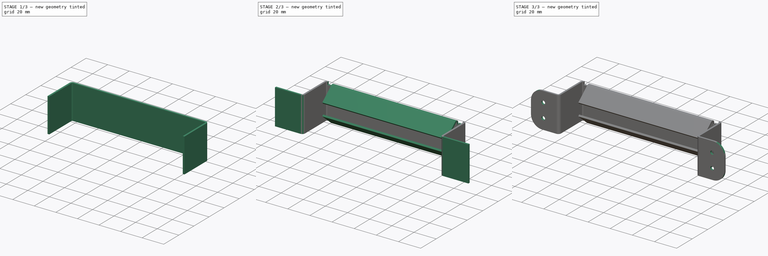
[diagram: build sequence overview — one tinted view per stage of 3, left to right]
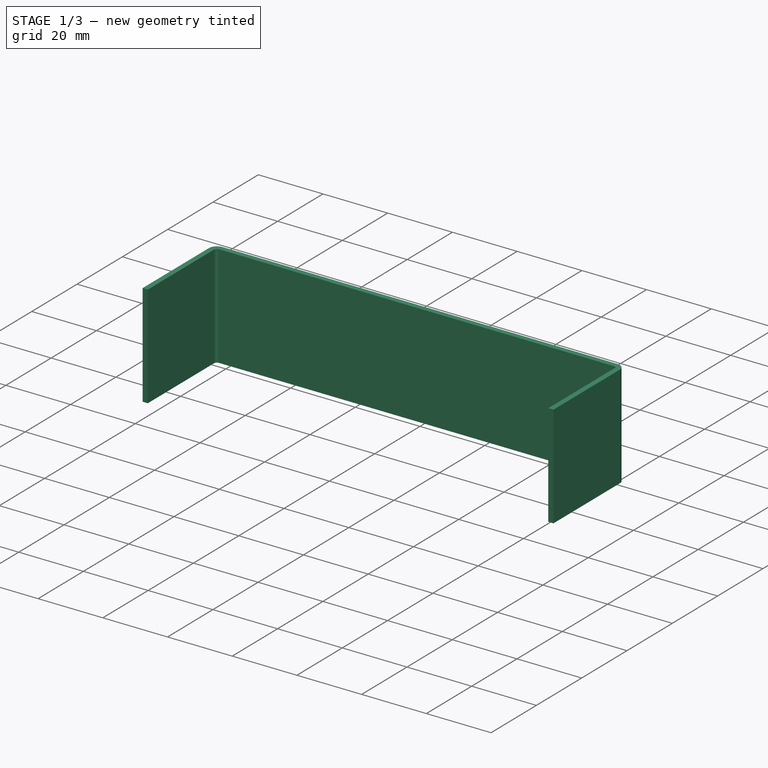
[diagram: stage 1 of 3 — iso view after this stage's code; geometry added in this stage tinted green]
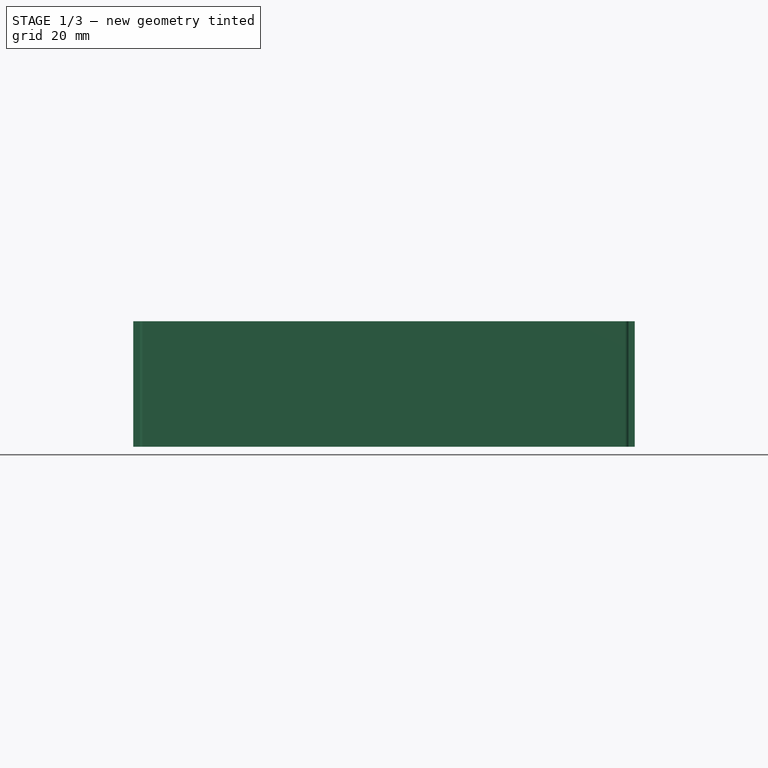
[diagram: stage 1 of 3 — front view after this stage's code; geometry added in this stage tinted green]
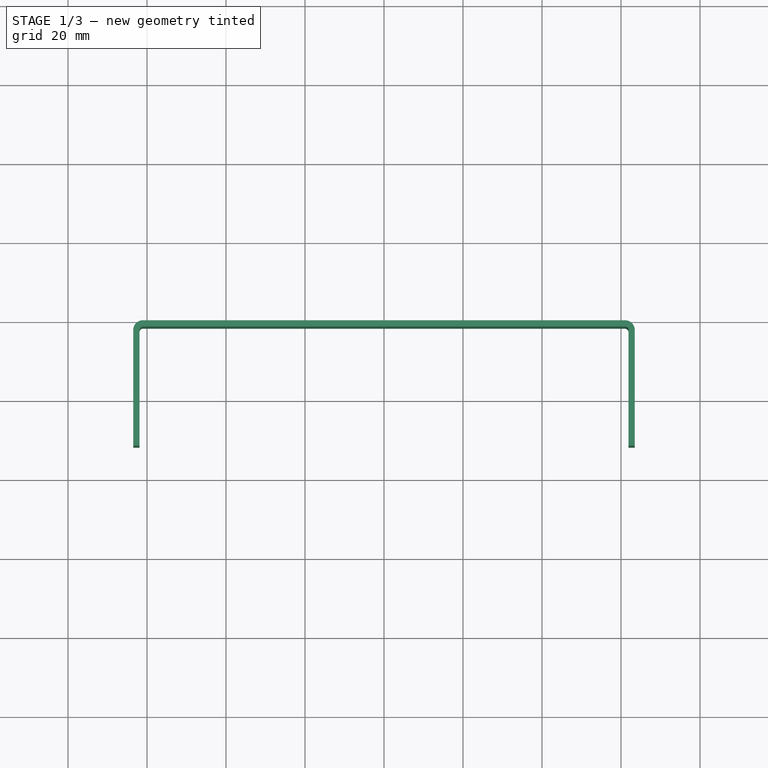
[diagram: stage 1 of 3 — top view after this stage's code; geometry added in this stage tinted green]
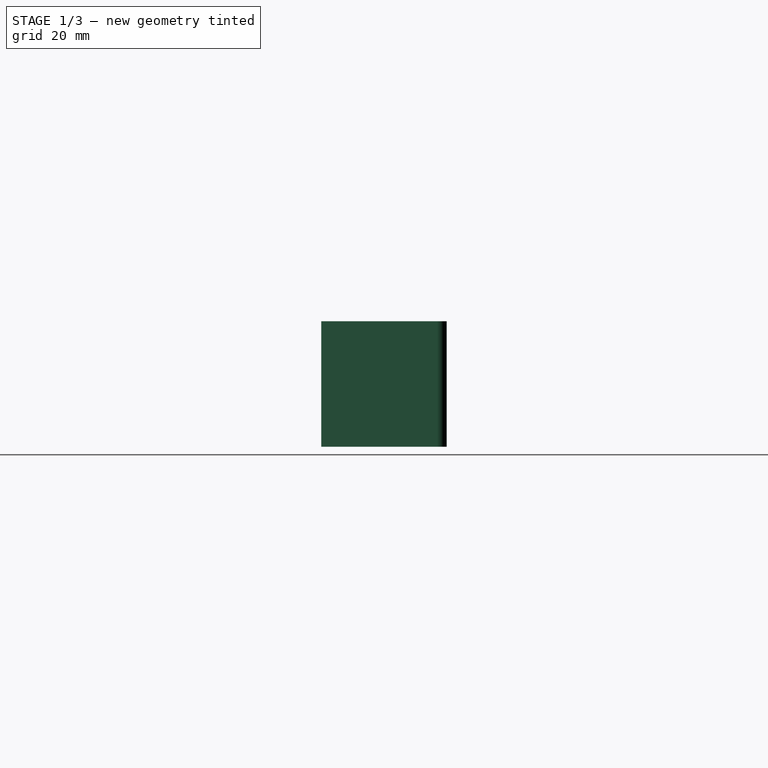
[diagram: stage 1 of 3 — right view after this stage's code; geometry added in this stage tinted green]
FCSTD DOCUMENT  (FreeCAD 1.0R39319 (Git))
Label: Tweaks
License: All rights reserved
LicenseURL: http://en.wikipedia.org/wiki/All_rights_reserved
objects: PartDesign::FeaturePython×3, Sketcher::SketchObject×2, Part::Feature×1, PartDesign::Pad×1, PartDesign::Pocket×1, PartDesign::Mirrored×1, PartDesign::Body×1
note: 20 computed .brp shape members not serialized (recipe doc carries the construction recipe); baked Part::Feature solids carry a one-line shape summary decoded from their .brp

FEATURE [Part::Feature] Part__Feature  label="Chamber; External Door Handle; 10-22-25"
  Placement = pos=(0,0,-44.45) rot=(0,0,1;0rad)
  shape: bbox 175.7 x 36.58 x 34.93 mm, 122 faces (baked)
FEATURE [Sketcher::SketchObject] Sketch
  ArcFitTolerance = 1e-06
  AttachmentSupport = -> [XZ_Plane]
  FullyConstrained = true
  MakeInternals = false
  MapMode = 5
  Placement = pos=(0,0,0) rot=(1,0,0;1.5708rad)
  sketch-geometry (5):
    g0: LineSegment StartX=-63.5 StartY=-15.875 StartZ=0 EndX=63.5 EndY=-15.875 EndZ=0
    g1: LineSegment StartX=63.5 StartY=-15.875 StartZ=0 EndX=63.5 EndY=15.875 EndZ=0
    g2: LineSegment StartX=63.5 StartY=15.875 StartZ=0 EndX=-63.5 EndY=15.875 EndZ=0
    g3: LineSegment StartX=-63.5 StartY=15.875 StartZ=0 EndX=-63.5 EndY=-15.875 EndZ=0
    g4: GeomPoint [constr] X=0 Y=0 Z=0
  constraints (12):
    c: Coincident(g0,g1)
    c: Coincident(g1,g2)
    c: Coincident(g2,g3)
    c: Coincident(g3,g0)
    c: Horizontal(g0)
    c: Horizontal(g2)
    c: Vertical(g1)
    c: Vertical(g3)
    c: Symmetric(g2,g0,g4)
    c: Coincident(g4,g-1)
    c: DistanceX(g2,g2) = 127
    c: DistanceY(g1,g1) = 31.75
FEATURE [PartDesign::Pad] Pad
  Direction = (0,-1,2e-16)
  Length = 1.6002
  Length2 = 10
  Placement = pos=(0,0,0) rot=(1,0,0;1.5708rad)
  Profile = -> Sketch
  ReferenceAxis = -> Sketch [N_Axis]
  Suppressed = false
  Type = 0
FEATURE [PartDesign::FeaturePython] Bend  # WARN: FeaturePython — macro-defined, semantics opaque (R4)
  AutoMiter = false
  BaseFeature = -> Pad
  BendType = 1
  LengthList = [31.75]
  LengthSpec = 1
  NonperforationMaxLength = 5
  OffsetType = 1
  OffsetTypeOffset = 0
  Perforate = false
  PerforationAngle = 0
  PerforationInitialLength = 5
  PerforationMaxLength = 5
  RelativeAngleToRef = 0
  ReliefFactor = 0.7
  SupplAngleRef = false
  Suppressed = false
  UseReliefFactor = false
  angle = 90
  baseObject = -> Pad [Edge7,Edge12]
  bendAList = [90]
  extend1 = 0
  extend2 = 0
  gap1 = 0
  gap2 = 0
  invert = false
  kfactor = 0.5
  length = 31.75
  maxExtendDist = 5
  minGap = 0.2
  minReliefGap = 1
  miterangle1 = 0
  miterangle2 = 0
  offset = 0
  radius = 0.889
  reliefType = 0
  reliefd = 1
  reliefw = 0.8
  sketchflip = false
  sketchinvert = false
  unfold = false
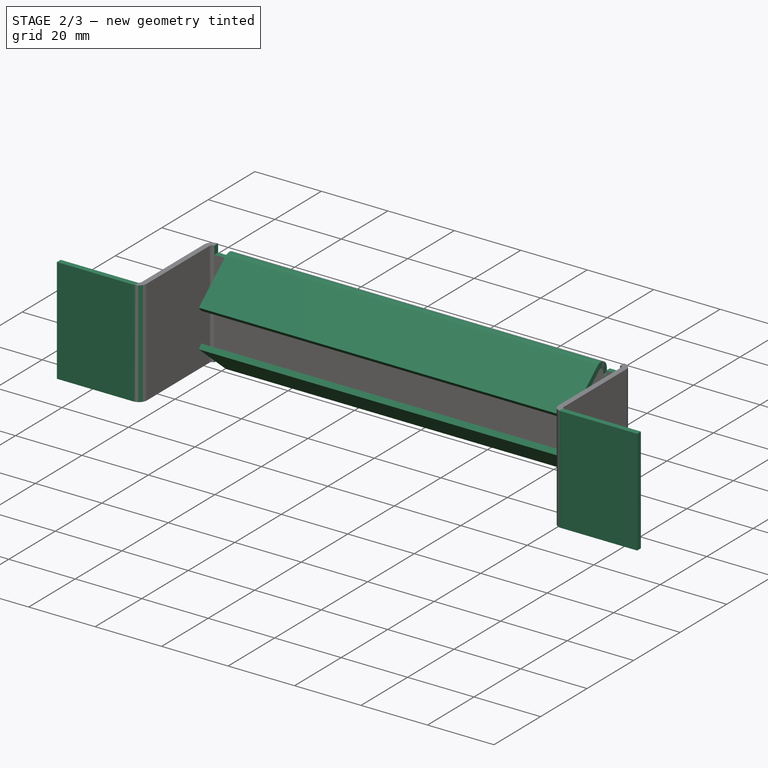
[diagram: stage 2 of 3 — iso view after this stage's code; geometry added in this stage tinted green]
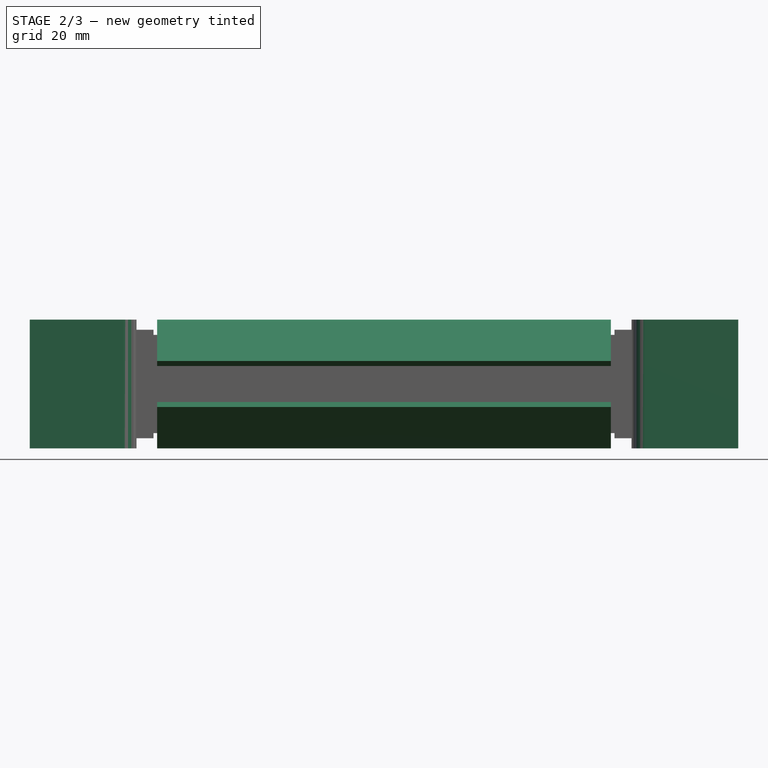
[diagram: stage 2 of 3 — front view after this stage's code; geometry added in this stage tinted green]
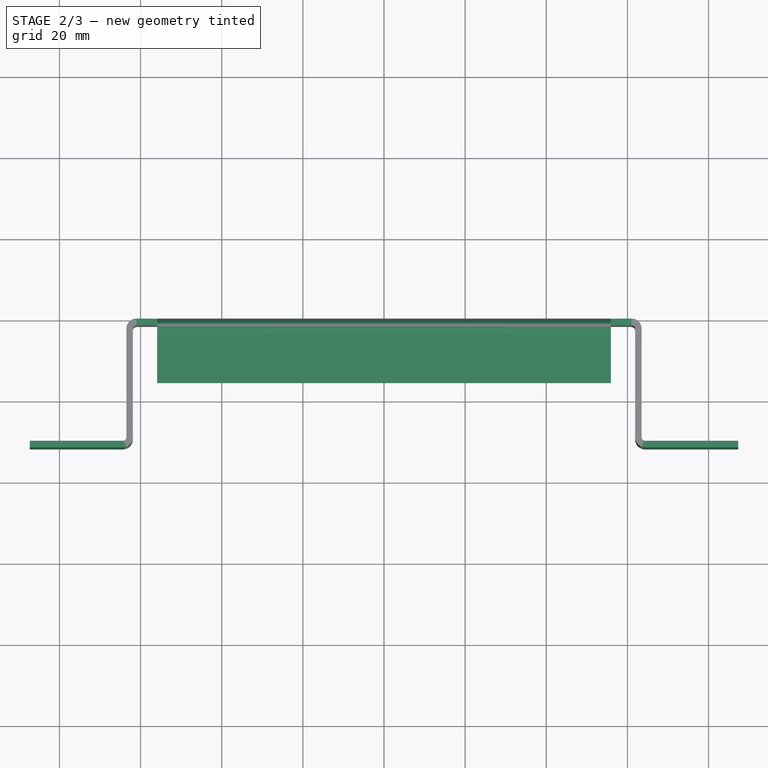
[diagram: stage 2 of 3 — top view after this stage's code; geometry added in this stage tinted green]
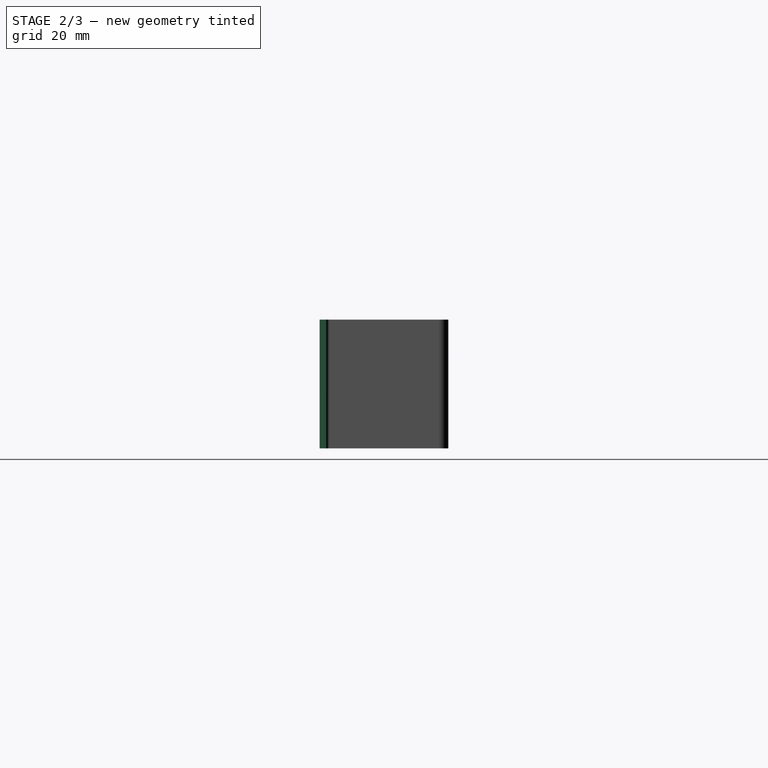
[diagram: stage 2 of 3 — right view after this stage's code; geometry added in this stage tinted green]
FEATURE [PartDesign::FeaturePython] Bend001  # WARN: FeaturePython — macro-defined, semantics opaque (R4)
  AutoMiter = false
  BaseFeature = -> Bend
  BendType = 1
  LengthList = [25.4]
  LengthSpec = 1
  NonperforationMaxLength = 5
  OffsetType = 1
  OffsetTypeOffset = 0
  Perforate = false
  PerforationAngle = 0
  PerforationInitialLength = 5
  PerforationMaxLength = 5
  RelativeAngleToRef = 0
  ReliefFactor = 0.7
  SupplAngleRef = false
  Suppressed = false
  UseReliefFactor = false
  angle = 90
  baseObject = -> Bend [Edge35,Edge37]
  bendAList = [90]
  extend1 = 0
  extend2 = 0
  gap1 = 0
  gap2 = 0
  invert = false
  kfactor = 0.5
  length = 25.4
  maxExtendDist = 5
  minGap = 0.2
  minReliefGap = 1
  miterangle1 = 0
  miterangle2 = 0
  offset = 0
  radius = 0.889
  reliefType = 0
  reliefd = 1
  reliefw = 0.8
  sketchflip = false
  sketchinvert = false
  unfold = false
FEATURE [PartDesign::FeaturePython] Bend002  # WARN: FeaturePython — macro-defined, semantics opaque (R4)
  AutoMiter = false
  BaseFeature = -> Bend001
  BendType = 1
  LengthList = [20.32]
  LengthSpec = 1
  NonperforationMaxLength = 5
  OffsetType = 1
  OffsetTypeOffset = 0
  Perforate = false
  PerforationAngle = 0
  PerforationInitialLength = 5
  PerforationMaxLength = 5
  RelativeAngleToRef = 0
  ReliefFactor = 0.7
  SupplAngleRef = false
  Suppressed = false
  UseReliefFactor = false
  angle = 130
  baseObject = -> Bend001 [Edge12,Edge3]
  bendAList = [130]
  extend1 = 0
  extend2 = 0
  gap1 = 5.08
  gap2 = 5.08
  invert = false
  kfactor = 0.5
  length = 20.32
  maxExtendDist = 5
  minGap = 0.2
  minReliefGap = 1
  miterangle1 = 0
  miterangle2 = 0
  offset = 0
  radius = 0.889
  reliefType = 0
  reliefd = 1.27
  reliefw = 0.889
  sketchflip = false
  sketchinvert = false
  unfold = false
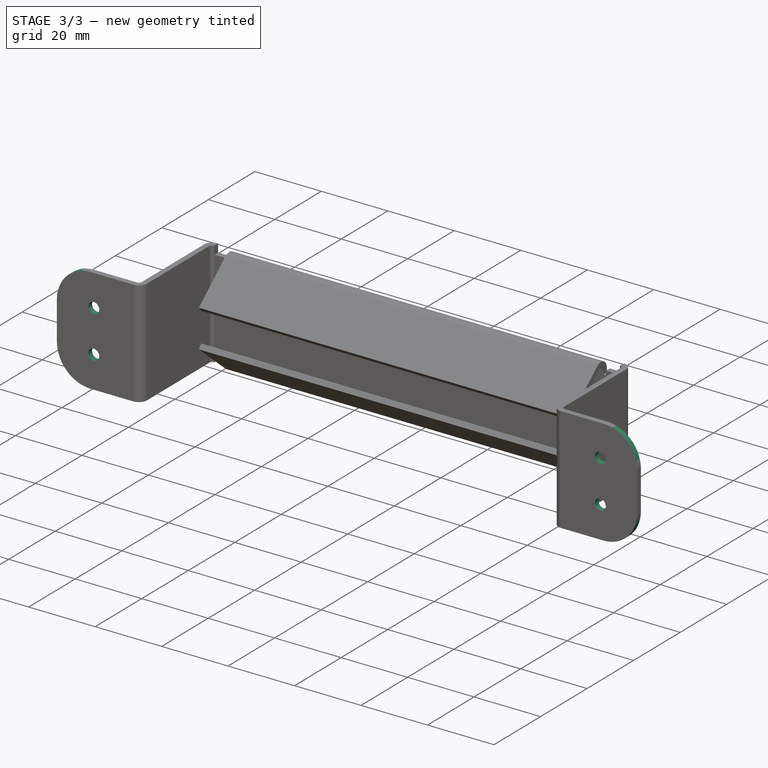
[diagram: stage 3 of 3 — iso view after this stage's code; geometry added in this stage tinted green]
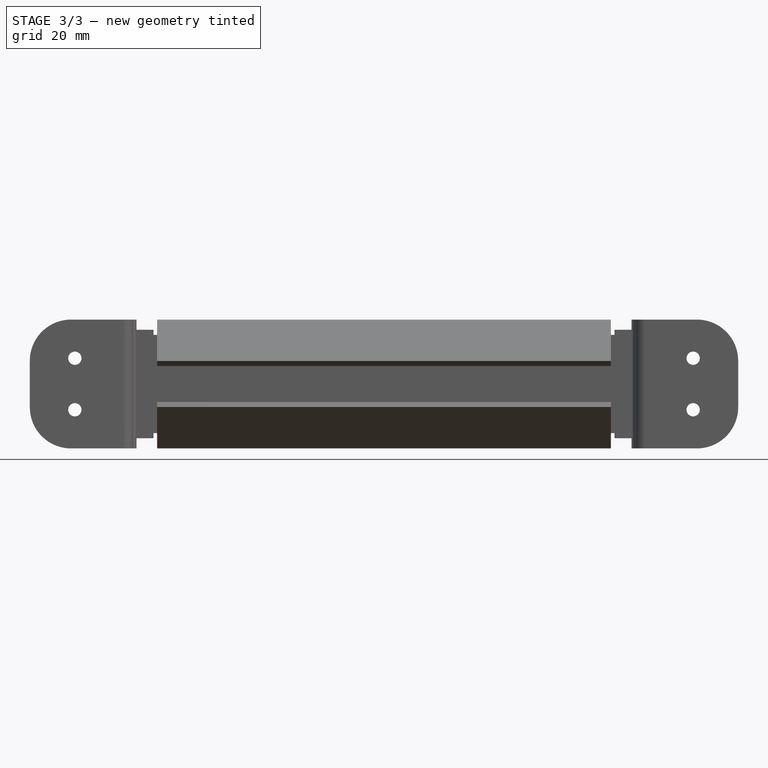
[diagram: stage 3 of 3 — front view after this stage's code; geometry added in this stage tinted green]
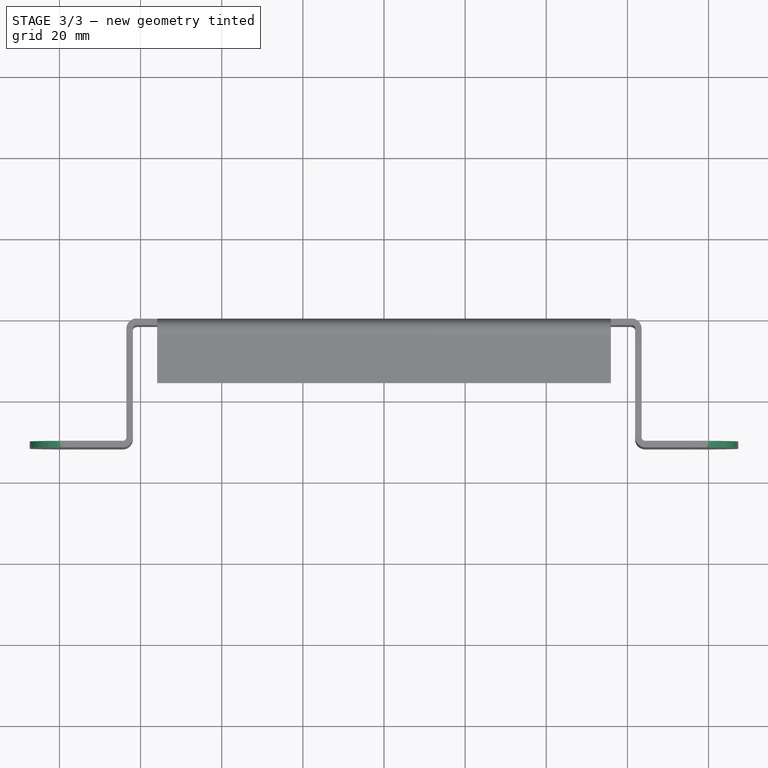
[diagram: stage 3 of 3 — top view after this stage's code; geometry added in this stage tinted green]
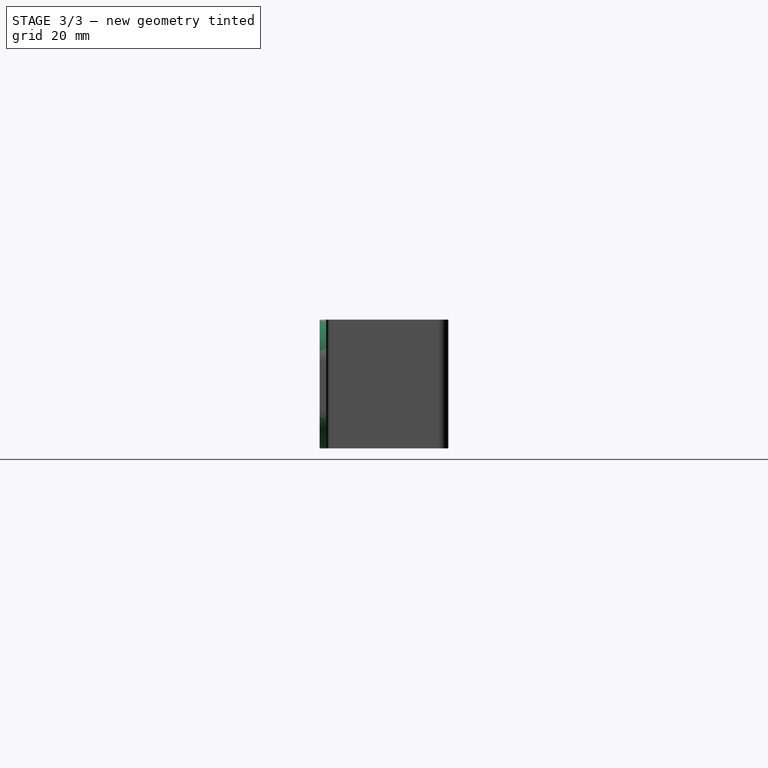
[diagram: stage 3 of 3 — right view after this stage's code; geometry added in this stage tinted green]
FEATURE [Sketcher::SketchObject] Sketch001
  ArcFitTolerance = 1e-06
  AttachmentSupport = -> [Bend002]
  ExternalGeometry = -> [Bend002]
  FullyConstrained = true
  MakeInternals = false
  MapMode = 5
  Placement = pos=(0,-30.1498,-6.6e-15) rot=(0,0.707107,0.707107;3.14159rad)
  sketch-geometry (8):
    g0: LineSegment StartX=-87.2998 StartY=15.875 StartZ=0 EndX=-77.1398 EndY=15.875 EndZ=0
    g1: Circle CenterX=-76.2 CenterY=-6.35 CenterZ=0 NormalX=0 NormalY=0 NormalZ=1 AngleXU=0 Radius=1.63195
    g2: Circle CenterX=-76.2 CenterY=6.35 CenterZ=0 NormalX=0 NormalY=0 NormalZ=1 AngleXU=0 Radius=1.63195
    g3: ArcOfCircle CenterX=-77.1398 CenterY=5.715 CenterZ=0 NormalX=0 NormalY=0 NormalZ=1 AngleXU=0 Radius=10.16 StartAngle=1.5708 EndAngle=3.14159
    g4: ArcOfCircle CenterX=-77.1398 CenterY=-5.715 CenterZ=0 NormalX=0 NormalY=0 NormalZ=1 AngleXU=0 Radius=10.16 StartAngle=3.14159 EndAngle=4.71239
    g5: LineSegment StartX=-77.1398 StartY=-15.875 StartZ=0 EndX=-87.2998 EndY=-15.875 EndZ=0
    g6: LineSegment StartX=-87.2998 StartY=5.715 StartZ=0 EndX=-87.2998 EndY=15.875 EndZ=0
    g7: LineSegment StartX=-87.2998 StartY=-15.875 StartZ=0 EndX=-87.2998 EndY=-5.715 EndZ=0
  constraints (19):
    c: Coincident(g0,g-3)
    c: Horizontal(g0)
    c: Diameter(g1) = 3.2639
    c: DistanceX(g1,g-1) = 76.2
    c: Equal(g2,g1)
    c: Symmetric(g2,g1,g-1)
    c: Distance(g1,g-1) = 6.35
    c: Tangent(g3,g0) = 1.5708
    c: Tangent(g5,g4) = 1.5708
    c: Horizontal(g5)
    c: Equal(g4,g3)
    c: Radius(g3) = 10.16
    c: Tangent(g6,g3) = 1.5708
    c: Coincident(g6,g0)
    c: Vertical(g6)
    c: Coincident(g7,g5)
    c: Tangent(g7,g4) = 1.5708
    c: Vertical(g7)
    c: Coincident(g5,g-3)
FEATURE [PartDesign::Pocket] Pocket
  BaseFeature = -> Bend002
  Direction = (0,-1,2e-16)
  Length = 5
  Length2 = 5
  Profile = -> Sketch001
  ReferenceAxis = -> Sketch001 [N_Axis]
  Suppressed = false
  Type = 1
FEATURE [PartDesign::Mirrored] Mirrored
  BaseFeature = -> Pocket
  MirrorPlane = -> Sketch001 [V_Axis]
  Originals = -> [Pocket]
  Suppressed = false
  TransformMode = 0
FEATURE [PartDesign::Body] Body  label="Repalcement Body"
  AllowCompound = false
  Group = -> [Sketch,Pad,Bend,Bend001,Bend002,Sketch001,Pocket,Mirrored]
  Origin = -> Origin
  Tip = -> Mirrored
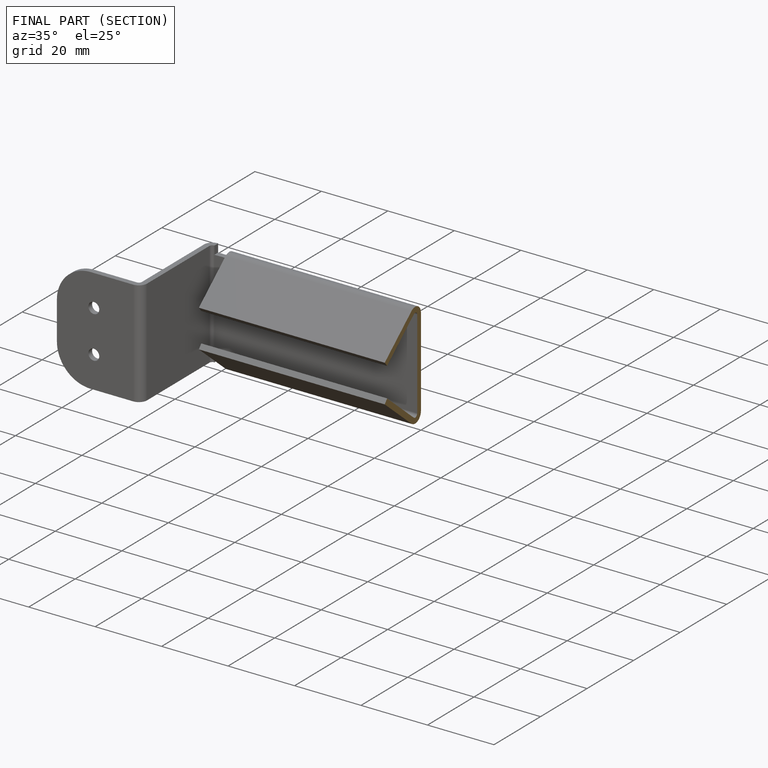
[diagram: finished part — half-section view (interior)]
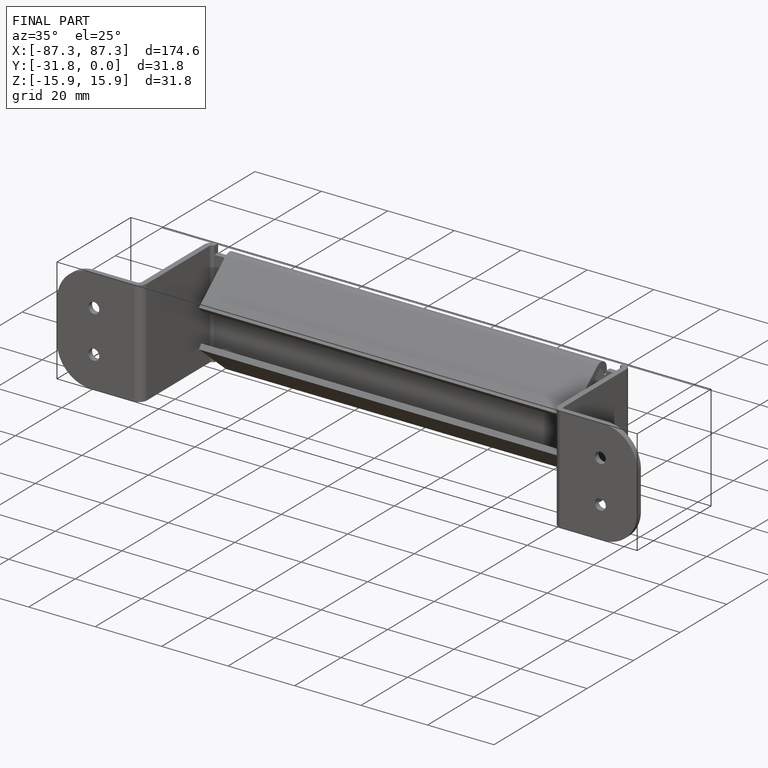
[diagram: finished part — iso view with bounding-box wireframe]
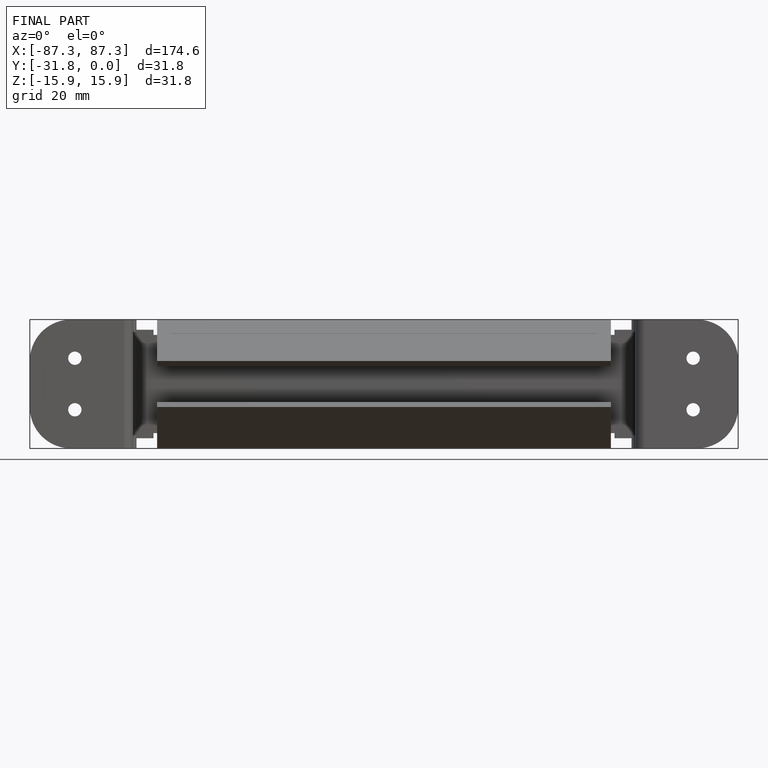
[diagram: finished part — front view with bounding-box wireframe]
